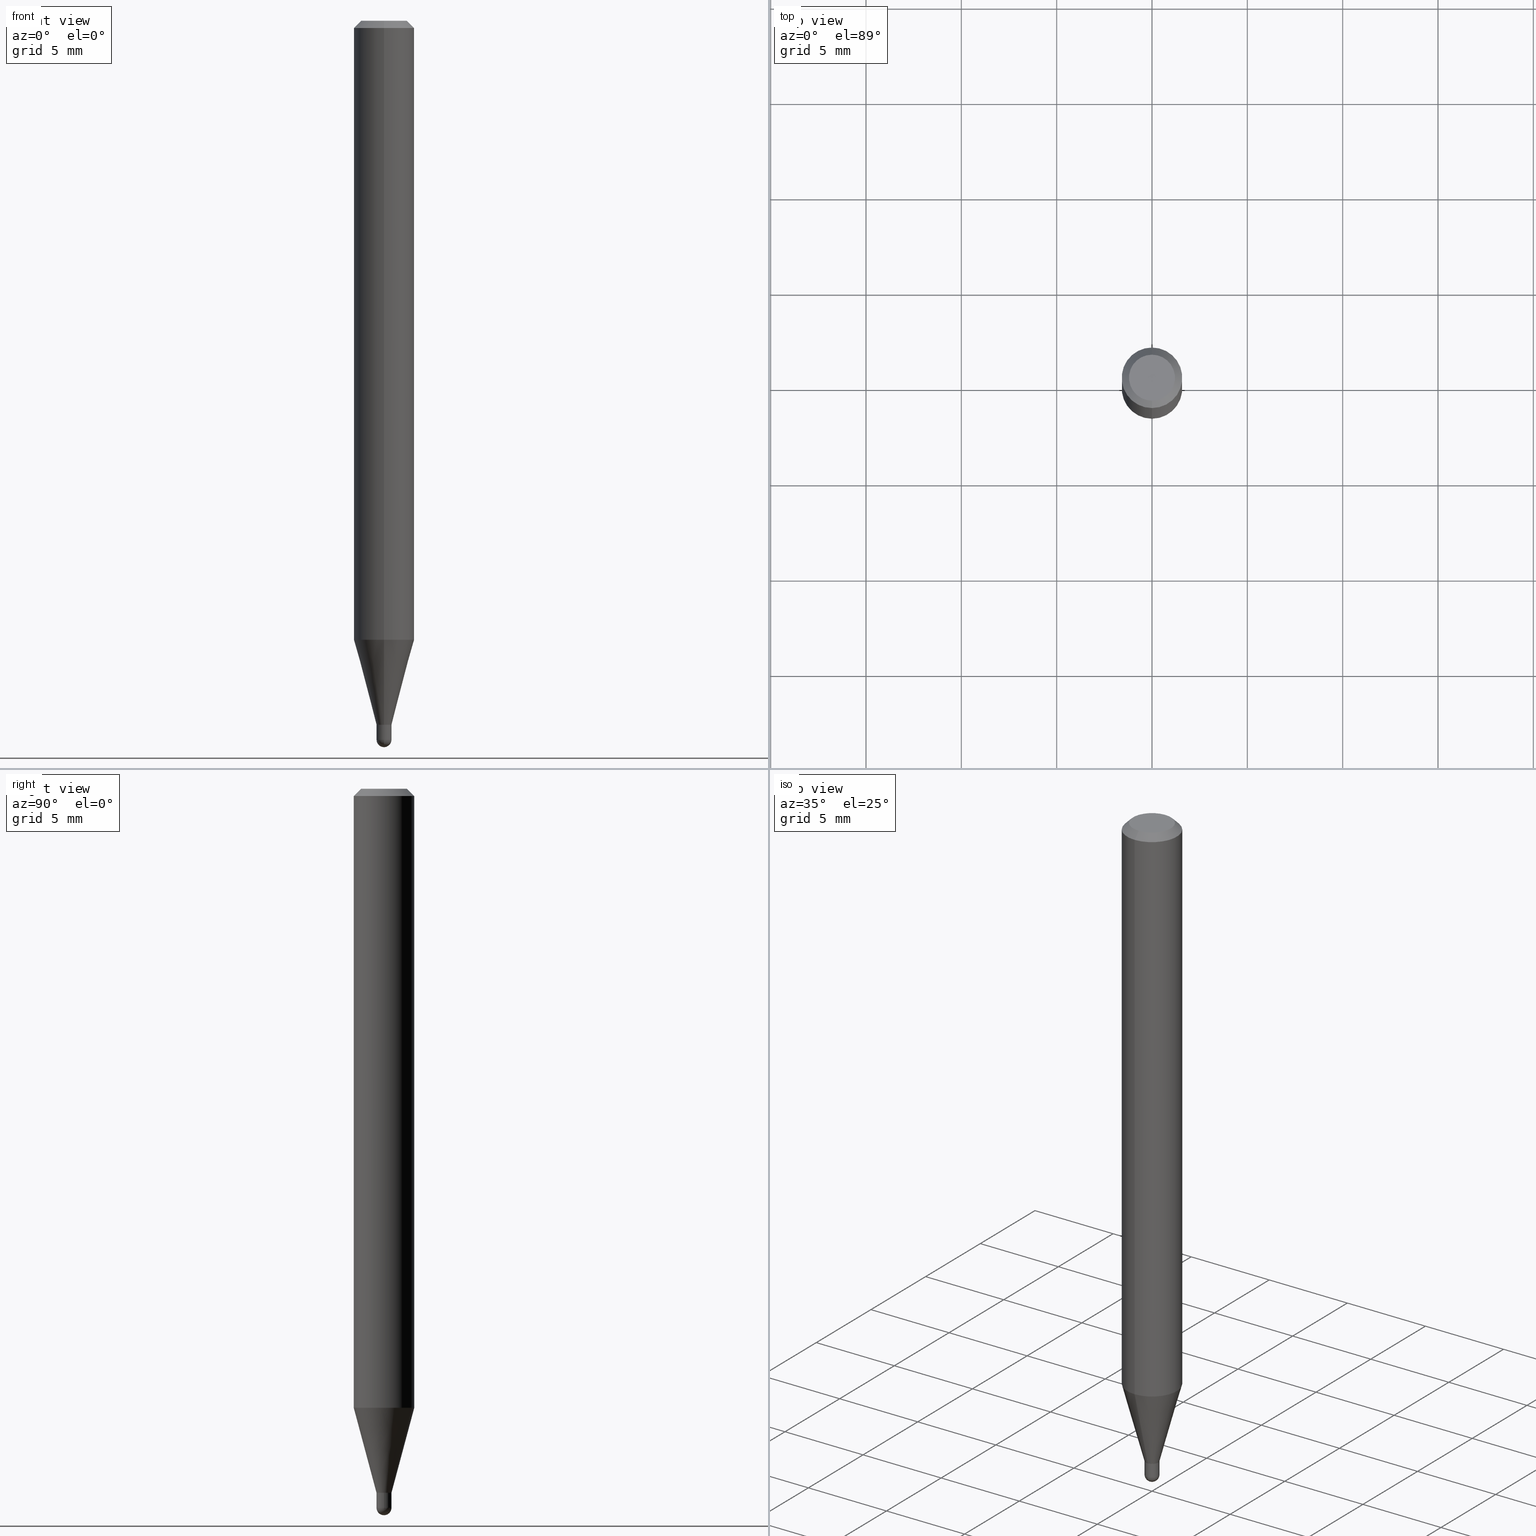
[diagram: canonical four-view strip — front | top / right | iso, engineering-drawing reading convention]
A machine part, canonical four-view strip (front | top / right | iso — engineering-drawing reading convention). The complete STEP part file that produces these views, byte-faithful:
ISO-10303-21;
HEADER;
FILE_DESCRIPTION (( 'STEP AP203' ),
    '1' );
FILE_NAME ('04343.STEP',
    '2024-03-08T18:45:11',
    ( '' ),
    ( '' ),
    'SwSTEP 2.0',
    'SolidWorks 2023',
    '' );
FILE_SCHEMA (( 'CONFIG_CONTROL_DESIGN' ));
ENDSEC;

DATA;
#1 = ADVANCED_FACE ( 'NONE', ( #459 ), #104, .T. ) ;
#2 = DIRECTION ( 'NONE',  ( -2.445464718672532152E-29, 3.491487192393841779E-15, 1.000000000000000000 ) ) ;
#3 = EDGE_LOOP ( 'NONE', ( #447, #122, #183, #148 ) ) ;
#4 = CARTESIAN_POINT ( 'NONE',  ( -1.047444401652584501E-16, -0.01500000000000507525, -1.453500000000000458 ) ) ;
#5 = DIRECTION ( 'NONE',  ( -2.445464718672532152E-29, 3.491487192393841779E-15, 1.000000000000000000 ) ) ;
#6 = AXIS2_PLACEMENT_3D ( 'NONE', #51, #366, #8 ) ;
#7 = EDGE_LOOP ( 'NONE', ( #402, #224, #219, #286 ) ) ;
#8 = DIRECTION ( 'NONE',  ( -6.982962677686265922E-15, -1.000000000000000000, 0.000000000000000000 ) ) ;
#9 = FACE_OUTER_BOUND ( 'NONE', #496, .T. ) ;
#10 = DIRECTION ( 'NONE',  ( -2.445468806185136597E-29, 3.491481338843145583E-15, 1.000000000000000000 ) ) ;
#11 = ORIENTED_EDGE ( 'NONE', *, *, #481, .T. ) ;
#12 = FACE_OUTER_BOUND ( 'NONE', #19, .T. ) ;
#13 = CALENDAR_DATE ( 2024, 8, 3 ) ;
#14 = CARTESIAN_POINT ( 'NONE',  ( 3.553260236231190084E-29, -5.073130890548253102E-15, -1.453000000000000291 ) ) ;
#15 = EDGE_LOOP ( 'NONE', ( #405, #86, #223, #133 ) ) ;
#16 = DIRECTION ( 'NONE',  ( -2.445464718672532152E-29, 3.491487192393841779E-15, 1.000000000000000000 ) ) ;
#17 = ADVANCED_FACE ( 'NONE', ( #189 ), #29, .F. ) ;
#18 = PERSON ( 'UNSPECIFIED', 'UNSPECIFIED', 'UNSPECIFIED', ('UNSPECIFIED'), ('UNSPECIFIED'), ('UNSPECIFIED') ) ;
#19 = EDGE_LOOP ( 'NONE', ( #137, #244 ) ) ;
#20 = AXIS2_PLACEMENT_3D ( 'NONE', #238, #298, #141 ) ;
#21 = ORIENTED_EDGE ( 'NONE', *, *, #72, .T. ) ;
#22 = CYLINDRICAL_SURFACE ( 'NONE', #494, 0.01549999999999992530 ) ;
#23 = COORDINATED_UNIVERSAL_TIME_OFFSET ( 5, 0, .BEHIND. ) ;
#24 = ORIENTED_EDGE ( 'NONE', *, *, #348, .T. ) ;
#25 = ORIENTED_EDGE ( 'NONE', *, *, #203, .F. ) ;
#26 = CARTESIAN_POINT ( 'NONE',  ( 3.628972935033607816E-29, -5.185002250051328055E-15, -1.484500000000000153 ) ) ;
#27 = CARTESIAN_POINT ( 'NONE',  ( 1.101341240428524689E-16, 0.01549999999999512185, -1.453500000000000236 ) ) ;
#28 = AXIS2_PLACEMENT_3D ( 'NONE', #128, #474, #361 ) ;
#29 = PLANE ( 'NONE',  #119 ) ;
#30 = EDGE_CURVE ( 'NONE', #436, #446, #424, .T. ) ;
#31 = CONICAL_SURFACE ( 'NONE', #74, 0.01550000000000019765, 0.2617993877991570684 ) ;
#32 = EDGE_CURVE ( 'NONE', #436, #293, #453, .T. ) ;
#33 = AXIS2_PLACEMENT_3D ( 'NONE', #418, #151, #355 ) ;
#34 = CARTESIAN_POINT ( 'NONE',  ( 3.630298442781836457E-29, -5.183104047512650777E-15, -1.484500000000000597 ) ) ;
#35 = DIRECTION ( 'NONE',  ( 0.000000000000000000, 0.000000000000000000, 1.000000000000000000 ) ) ;
#36 = CARTESIAN_POINT ( 'NONE',  ( -0.01549999999999999989, -5.018851962717766568E-15, -1.453500000000000236 ) ) ;
#37 = CARTESIAN_POINT ( 'NONE',  ( 0.000000000000000000, 0.000000000000000000, 0.000000000000000000 ) ) ;
#38 =( NAMED_UNIT ( * ) SI_UNIT ( $, .STERADIAN. ) SOLID_ANGLE_UNIT ( ) );
#39 = CIRCLE ( 'NONE', #327, 0.01549999999999999989 ) ;
#40 = FACE_OUTER_BOUND ( 'NONE', #150, .T. ) ;
#41 = ORIENTED_EDGE ( 'NONE', *, *, #215, .T. ) ;
#42 = DIRECTION ( 'NONE',  ( -6.982962677686265922E-15, -1.000000000000000000, 0.000000000000000000 ) ) ;
#43 = ORIENTED_EDGE ( 'NONE', *, *, #96, .T. ) ;
#44 = DIRECTION ( 'NONE',  ( -2.445464718672532152E-29, 3.491487192393841779E-15, 1.000000000000000000 ) ) ;
#45 = LENGTH_MEASURE_WITH_UNIT ( LENGTH_MEASURE( 0.02539999999999999897 ), #325 );
#46 = CC_DESIGN_PERSON_AND_ORGANIZATION_ASSIGNMENT ( #190, #442, ( #147 ) ) ;
#47 = CARTESIAN_POINT ( 'NONE',  ( 3.668197078008814466E-31, -5.237230788590785669E-17, -0.01500000000000006710 ) ) ;
#48 = CLOSED_SHELL ( 'NONE', ( #230, #71, #399, #448, #272, #199, #140, #111, #389, #281, #157, #386 ) ) ;
#49 = ORIENTED_EDGE ( 'NONE', *, *, #123, .F. ) ;
#50 = CC_DESIGN_APPROVAL ( #146, ( #147 ) ) ;
#51 = CARTESIAN_POINT ( 'NONE',  ( 3.628972935033607816E-29, -5.185002250051328055E-15, -1.484500000000000153 ) ) ;
#52 = DIRECTION ( 'NONE',  ( 1.000000000000000000, -6.982962677686238312E-15, 0.000000000000000000 ) ) ;
#53 = ORIENTED_EDGE ( 'NONE', *, *, #30, .T. ) ;
#54 = EDGE_CURVE ( 'NONE', #282, #144, #470, .T. ) ;
#55 = ORIENTED_EDGE ( 'NONE', *, *, #308, .T. ) ;
#56 = CARTESIAN_POINT ( 'NONE',  ( 3.554482968590526630E-29, -5.074876634144451115E-15, -1.453500000000000458 ) ) ;
#57 = DIRECTION ( 'NONE',  ( -2.445464718672532152E-29, 3.491487192393841779E-15, 1.000000000000000000 ) ) ;
#58 = EDGE_LOOP ( 'NONE', ( #49, #125, #416, #62 ) ) ;
#59 = AXIS2_PLACEMENT_3D ( 'NONE', #138, #97, #413 ) ;
#60 = VECTOR ( 'NONE', #383, 39.37007874015748143 ) ;
#61 = CARTESIAN_POINT ( 'NONE',  ( 3.630298442781836457E-29, -5.183104047512650777E-15, -1.484500000000000597 ) ) ;
#62 = ORIENTED_EDGE ( 'NONE', *, *, #296, .F. ) ;
#63 = DATE_AND_TIME ( #456, #208 ) ;
#64 = VERTEX_POINT ( 'NONE', #273 ) ;
#65 = DIRECTION ( 'NONE',  ( 1.000000000000000000, -6.982962677686266711E-15, 4.876176775795935232E-29 ) ) ;
#66 = SPHERICAL_SURFACE ( 'NONE', #81, 0.01549999999999993917 ) ;
#67 = CARTESIAN_POINT ( 'NONE',  ( -3.773273898774340269E-16, -0.04749999999999999362, 1.003456856299693000E-16 ) ) ;
#68 = AXIS2_PLACEMENT_3D ( 'NONE', #47, #278, #392 ) ;
#69 = LOCAL_TIME ( 13, 45, 11.00000000000000000, #221 ) ;
#70 = CARTESIAN_POINT ( 'NONE',  ( -0.01549999999999999989, 1.101341240428155280E-16, -7.624349389895103058E-31 ) ) ;
#71 = ADVANCED_FACE ( 'NONE', ( #40 ), #510, .T. ) ;
#72 = EDGE_CURVE ( 'NONE', #254, #341, #275, .T. ) ;
#73 = DIRECTION ( 'NONE',  ( -2.445464718672532152E-29, 3.491487192393841779E-15, 1.000000000000000000 ) ) ;
#74 = AXIS2_PLACEMENT_3D ( 'NONE', #225, #351, #100 ) ;
#75 = CARTESIAN_POINT ( 'NONE',  ( -4.287811248607203282E-16, -0.06250000000000005551, -0.01499999999999984852 ) ) ;
#76 = APPLICATION_CONTEXT ( 'configuration controlled 3d designs of mechanical parts and assemblies' ) ;
#77 = EDGE_CURVE ( 'NONE', #446, #335, #39, .T. ) ;
#78 = CARTESIAN_POINT ( 'NONE',  ( 3.628972935033607816E-29, -5.185002250051328055E-15, -1.484500000000000153 ) ) ;
#79 = DIRECTION ( 'NONE',  ( 2.445464718672532152E-29, -3.491487192393841779E-15, -1.000000000000000000 ) ) ;
#80 = CIRCLE ( 'NONE', #152, 0.06250000000000000000 ) ;
#81 = AXIS2_PLACEMENT_3D ( 'NONE', #160, #234, #156 ) ;
#82 = DIRECTION ( 'NONE',  ( -6.982962677686265922E-15, -1.000000000000000000, 0.000000000000000000 ) ) ;
#83 = ORIENTED_EDGE ( 'NONE', *, *, #481, .F. ) ;
#84 = PLANE ( 'NONE',  #28 ) ;
#85 = DIRECTION ( 'NONE',  ( -2.445464718672532152E-29, 3.491487192393841779E-15, 1.000000000000000000 ) ) ;
#86 = ORIENTED_EDGE ( 'NONE', *, *, #54, .T. ) ;
#87 = APPROVAL ( #210, 'UNSPECIFIED' ) ;
#88 = CYLINDRICAL_SURFACE ( 'NONE', #166, 0.01549999999999992530 ) ;
#89 = VERTEX_POINT ( 'NONE', #398 ) ;
#90 = DIRECTION ( 'NONE',  ( -4.937700262161976356E-15, -0.7071067811861768693, 0.7071067811869181652 ) ) ;
#91 = CIRCLE ( 'NONE', #33, 0.01549999999999999989 ) ;
#92 = ORIENTED_EDGE ( 'NONE', *, *, #264, .T. ) ;
#93 = CARTESIAN_POINT ( 'NONE',  ( 1.601778314939720223E-45, -2.286922575068692534E-31, -6.549995600873813326E-17 ) ) ;
#94 = DATE_AND_TIME ( #13, #444 ) ;
#95 = VERTEX_POINT ( 'NONE', #404 ) ;
#96 = EDGE_CURVE ( 'NONE', #89, #335, #285, .T. ) ;
#97 = DIRECTION ( 'NONE',  ( -2.445464718672532152E-29, 3.491487192393841779E-15, 1.000000000000000000 ) ) ;
#98 = ORIENTED_EDGE ( 'NONE', *, *, #215, .F. ) ;
#99 = VECTOR ( 'NONE', #466, 39.37007874015748143 ) ;
#100 = DIRECTION ( 'NONE',  ( -6.982962677686266711E-15, -1.000000000000000000, 0.000000000000000000 ) ) ;
#101 = CIRCLE ( 'NONE', #339, 0.01499999999999999944 ) ;
#102 = PERSON_AND_ORGANIZATION ( #18, #320 ) ;
#103 = FACE_OUTER_BOUND ( 'NONE', #7, .T. ) ;
#104 = CYLINDRICAL_SURFACE ( 'NONE', #290, 0.01549999999999999989 ) ;
#105 = PERSON_AND_ORGANIZATION_ROLE ( 'design_supplier' ) ;
#106 = ORIENTED_EDGE ( 'NONE', *, *, #428, .F. ) ;
#107 = CONICAL_SURFACE ( 'NONE', #393, 0.01499999999999999944, 0.7853981633969275844 ) ;
#108 = DIRECTION ( 'NONE',  ( 1.000000000000000000, -6.982962677686265922E-15, 4.883557194083112340E-29 ) ) ;
#109 = APPLICATION_PROTOCOL_DEFINITION ( 'international standard', 'config_control_design', 1994, #174 ) ;
#110 = DIRECTION ( 'NONE',  ( 1.000000000000000000, -7.105427357601001070E-15, 4.926315508542082329E-29 ) ) ;
#111 = ADVANCED_FACE ( 'NONE', ( #246 ), #158, .T. ) ;
#112 = AXIS2_PLACEMENT_3D ( 'NONE', #257, #212, #288 ) ;
#113 = VECTOR ( 'NONE', #90, 39.37007874015748143 ) ;
#114 = EDGE_CURVE ( 'NONE', #164, #379, #207, .T. ) ;
#115 = SECURITY_CLASSIFICATION_LEVEL ( 'unclassified' ) ;
#116 = CARTESIAN_POINT ( 'NONE',  ( -1.047444401652584501E-16, -0.01500000000000507525, -1.453500000000000458 ) ) ;
#117 = ORIENTED_EDGE ( 'NONE', *, *, #32, .T. ) ;
#118 = EDGE_CURVE ( 'NONE', #295, #167, #353, .T. ) ;
#119 = AXIS2_PLACEMENT_3D ( 'NONE', #344, #304, #460 ) ;
#120 = DIRECTION ( 'NONE',  ( -6.982962677686265922E-15, -1.000000000000000000, 3.491487192393841779E-15 ) ) ;
#121 = CIRCLE ( 'NONE', #454, 0.04749999999999999362 ) ;
#122 = ORIENTED_EDGE ( 'NONE', *, *, #493, .F. ) ;
#123 = EDGE_CURVE ( 'NONE', #64, #293, #132, .T. ) ;
#124 = CARTESIAN_POINT ( 'NONE',  ( 0.000000000000000000, 0.000000000000000000, 0.000000000000000000 ) ) ;
#125 = ORIENTED_EDGE ( 'NONE', *, *, #428, .T. ) ;
#126 = DIRECTION ( 'NONE',  ( -6.982962677686265922E-15, -1.000000000000000000, 3.491487192393841779E-15 ) ) ;
#127 = DIRECTION ( 'NONE',  ( 1.000000000000000000, -6.982962677686238312E-15, 0.000000000000000000 ) ) ;
#128 = CARTESIAN_POINT ( 'NONE',  ( 3.316907271900976096E-16, 0.04749999999999999362, -1.985956196430765430E-16 ) ) ;
#129 = CARTESIAN_POINT ( 'NONE',  ( 3.554488909790096218E-29, -5.074868126008512823E-15, -1.453500000000000236 ) ) ;
#130 = CARTESIAN_POINT ( 'NONE',  ( 1.065814103640505597E-16, 0.01499999999999492538, -1.453500000000000458 ) ) ;
#131 = FACE_OUTER_BOUND ( 'NONE', #321, .T. ) ;
#132 = CIRCLE ( 'NONE', #6, 0.01549999999999993917 ) ;
#133 = ORIENTED_EDGE ( 'NONE', *, *, #348, .F. ) ;
#134 = CC_DESIGN_APPROVAL ( #305, ( #495 ) ) ;
#135 = CARTESIAN_POINT ( 'NONE',  ( 3.125532835414998738E-29, -4.462447477132949161E-15, -1.278093612044269189 ) ) ;
#136 = CARTESIAN_POINT ( 'NONE',  ( 3.668197078008814466E-31, -5.237230788590785669E-17, -0.01500000000000006710 ) ) ;
#137 = ORIENTED_EDGE ( 'NONE', *, *, #493, .T. ) ;
#138 = CARTESIAN_POINT ( 'NONE',  ( 1.601778314939720223E-45, -2.286922575068692534E-31, -6.549995600873813326E-17 ) ) ;
#139 = ORIENTED_EDGE ( 'NONE', *, *, #178, .F. ) ;
#140 = ADVANCED_FACE ( 'NONE', ( #443 ), #169, .T. ) ;
#141 = DIRECTION ( 'NONE',  ( -6.982962677686266711E-15, -1.000000000000000000, 0.000000000000000000 ) ) ;
#142 = COORDINATED_UNIVERSAL_TIME_OFFSET ( 5, 0, .BEHIND. ) ;
#143 = DATE_AND_TIME ( #377, #69 ) ;
#144 = VERTEX_POINT ( 'NONE', #171 ) ;
#145 = AXIS2_PLACEMENT_3D ( 'NONE', #177, #302, #375 ) ;
#146 = APPROVAL ( #417, 'UNSPECIFIED' ) ;
#147 = PRODUCT_DEFINITION_FORMATION_WITH_SPECIFIED_SOURCE ( 'ANY', '', #501, .NOT_KNOWN. ) ;
#148 = ORIENTED_EDGE ( 'NONE', *, *, #258, .T. ) ;
#149 = CC_DESIGN_DATE_AND_TIME_ASSIGNMENT ( #143, #253, ( #495 ) ) ;
#150 = EDGE_LOOP ( 'NONE', ( #256, #179, #318, #83 ) ) ;
#151 = DIRECTION ( 'NONE',  ( -2.445468806185136597E-29, 3.491481338843145583E-15, 1.000000000000000000 ) ) ;
#152 = AXIS2_PLACEMENT_3D ( 'NONE', #420, #382, #289 ) ;
#153 = EDGE_CURVE ( 'NONE', #334, #282, #299, .T. ) ;
#154 = APPROVAL_STATUS ( 'not_yet_approved' ) ;
#155 = CARTESIAN_POINT ( 'NONE',  ( 0.01549999999999999989, -5.183104047512649200E-15, -1.453500000000000236 ) ) ;
#156 = DIRECTION ( 'NONE',  ( -6.982962677686265922E-15, -1.000000000000000000, 0.000000000000000000 ) ) ;
#157 = ADVANCED_FACE ( 'NONE', ( #277 ), #107, .T. ) ;
#158 = CONICAL_SURFACE ( 'NONE', #68, 0.06250000000000000000, 0.7853981633974483900 ) ;
#159 = CIRCLE ( 'NONE', #437, 0.01549999999999993917 ) ;
#160 = CARTESIAN_POINT ( 'NONE',  ( 3.628972935033607816E-29, -5.185002250051328055E-15, -1.484500000000000153 ) ) ;
#161 = APPROVAL_ROLE ( '' ) ;
#162 = EDGE_CURVE ( 'NONE', #498, #475, #280, .T. ) ;
#163 = ORIENTED_EDGE ( 'NONE', *, *, #162, .T. ) ;
#164 = VERTEX_POINT ( 'NONE', #4 ) ;
#165 = CLOSED_SHELL ( 'NONE', ( #1, #451, #17, #469, #505 ) ) ;
#166 = AXIS2_PLACEMENT_3D ( 'NONE', #214, #2, #120 ) ;
#167 = VERTEX_POINT ( 'NONE', #397 ) ;
#168 = COORDINATED_UNIVERSAL_TIME_OFFSET ( 5, 0, .BEHIND. ) ;
#169 = CYLINDRICAL_SURFACE ( 'NONE', #112, 0.06250000000000000000 ) ;
#170 = CARTESIAN_POINT ( 'NONE',  ( 4.440892098500935790E-16, 0.06249999999999551747, -1.278093612044269411 ) ) ;
#171 = CARTESIAN_POINT ( 'NONE',  ( 4.440892098500940720E-16, 0.06249999999999995143, -0.01500000000000028394 ) ) ;
#172 = DIRECTION ( 'NONE',  ( -6.982962677686265922E-15, -1.000000000000000000, 4.370956789862821150E-15 ) ) ;
#173 = VECTOR ( 'NONE', #360, 39.37007874015748143 ) ;
#174 = APPLICATION_CONTEXT ( 'configuration controlled 3d designs of mechanical parts and assemblies' ) ;
#175 = CIRCLE ( 'NONE', #262, 0.01549999999999965121 ) ;
#176 = ORIENTED_EDGE ( 'NONE', *, *, #118, .F. ) ;
#177 = CARTESIAN_POINT ( 'NONE',  ( 3.554488909790096218E-29, -5.074868126008512823E-15, -1.453500000000000236 ) ) ;
#178 = EDGE_CURVE ( 'NONE', #374, #144, #432, .T. ) ;
#179 = ORIENTED_EDGE ( 'NONE', *, *, #390, .T. ) ;
#180 = EDGE_CURVE ( 'NONE', #167, #334, #431, .T. ) ;
#181 = CARTESIAN_POINT ( 'NONE',  ( 0.000000000000000000, 0.000000000000000000, 0.000000000000000000 ) ) ;
#182 = CARTESIAN_POINT ( 'NONE',  ( -4.364351673553916201E-16, -0.06250000000000000000, 2.182179495246151112E-16 ) ) ;
#183 = ORIENTED_EDGE ( 'NONE', *, *, #178, .T. ) ;
#184 = PRODUCT_DEFINITION_SHAPE ( 'NONE', 'NONE',  #271 ) ;
#185 = DIRECTION ( 'NONE',  ( -2.445464718672532152E-29, 3.491487192393841779E-15, 1.000000000000000000 ) ) ;
#186 = ORIENTED_EDGE ( 'NONE', *, *, #180, .T. ) ;
#187 = AXIS2_PLACEMENT_3D ( 'NONE', #37, #73, #274 ) ;
#188 = DIRECTION ( 'NONE',  ( -6.982962677686265922E-15, -1.000000000000000000, 3.491487192393841779E-15 ) ) ;
#189 = FACE_OUTER_BOUND ( 'NONE', #209, .T. ) ;
#190 = PERSON_AND_ORGANIZATION ( #18, #320 ) ;
#191 = CIRCLE ( 'NONE', #476, 0.01549999999999999989 ) ;
#192 = CALENDAR_DATE ( 2024, 8, 3 ) ;
#193 = CARTESIAN_POINT ( 'NONE',  ( -1.082359215041365986E-16, -0.01549999999999992530, 5.411805148210428666E-17 ) ) ;
#194 = DIRECTION ( 'NONE',  ( -2.445468806185136597E-29, 3.491481338843145583E-15, 1.000000000000000000 ) ) ;
#195 = CARTESIAN_POINT ( 'NONE',  ( -0.01549999999999999989, -5.018851962717766568E-15, -1.484500000000000597 ) ) ;
#196 = CARTESIAN_POINT ( 'NONE',  ( 3.553260236231190084E-29, -5.073130890548253102E-15, -1.453000000000000291 ) ) ;
#197 = DIRECTION ( 'NONE',  ( -1.807323732225375893E-15, -0.2588190451025247363, 0.9659258262890673130 ) ) ;
#198 = DIRECTION ( 'NONE',  ( -6.982962677686265922E-15, -1.000000000000000000, 0.000000000000000000 ) ) ;
#199 = ADVANCED_FACE ( 'NONE', ( #410 ), #239, .T. ) ;
#200 = AXIS2_PLACEMENT_3D ( 'NONE', #56, #441, #403 ) ;
#201 = CARTESIAN_POINT ( 'NONE',  ( 4.364351673553919652E-16, 0.06249999999999995143, -0.01500000000000028394 ) ) ;
#202 = DIRECTION ( 'NONE',  ( -2.445464718672532152E-29, 3.491487192393841779E-15, 1.000000000000000000 ) ) ;
#203 = EDGE_CURVE ( 'NONE', #498, #374, #306, .T. ) ;
#204 = ORIENTED_EDGE ( 'NONE', *, *, #118, .T. ) ;
#205 = PERSON_AND_ORGANIZATION ( #18, #320 ) ;
#206 = DIRECTION ( 'NONE',  ( -6.982962677686266711E-15, -1.000000000000000000, 0.000000000000000000 ) ) ;
#207 = CIRCLE ( 'NONE', #200, 0.01499999999999999944 ) ;
#208 = LOCAL_TIME ( 13, 45, 11.00000000000000000, #23 ) ;
#209 = EDGE_LOOP ( 'NONE', ( #41, #480 ) ) ;
#210 = APPROVAL_STATUS ( 'not_yet_approved' ) ;
#211 = ORIENTED_EDGE ( 'NONE', *, *, #54, .F. ) ;
#212 = DIRECTION ( 'NONE',  ( -2.445464718672532152E-29, 3.491487192393841779E-15, 1.000000000000000000 ) ) ;
#213 = PLANE ( 'NONE',  #283 ) ;
#214 = CARTESIAN_POINT ( 'NONE',  ( 0.000000000000000000, 0.000000000000000000, 0.000000000000000000 ) ) ;
#215 = EDGE_CURVE ( 'NONE', #335, #446, #250, .T. ) ;
#216 = APPROVAL_DATE_TIME ( #94, #87 ) ;
#217 = CIRCLE ( 'NONE', #503, 0.06250000000000000000 ) ;
#218 = AXIS2_PLACEMENT_3D ( 'NONE', #508, #35, #473 ) ;
#219 = ORIENTED_EDGE ( 'NONE', *, *, #371, .T. ) ;
#220 = DIRECTION ( 'NONE',  ( -6.982962677686265922E-15, -1.000000000000000000, 3.483106191921935554E-15 ) ) ;
#221 = COORDINATED_UNIVERSAL_TIME_OFFSET ( 5, 0, .BEHIND. ) ;
#222 = ORIENTED_EDGE ( 'NONE', *, *, #371, .F. ) ;
#223 = ORIENTED_EDGE ( 'NONE', *, *, #358, .F. ) ;
#224 = ORIENTED_EDGE ( 'NONE', *, *, #308, .F. ) ;
#225 = CARTESIAN_POINT ( 'NONE',  ( 3.554482968590526070E-29, -5.074876634144450327E-15, -1.453500000000000236 ) ) ;
#226 = VECTOR ( 'NONE', #291, 39.37007874015748143 ) ;
#227 = ADVANCED_BREP_SHAPE_REPRESENTATION ( '04343', ( #340, #343, #218 ), #284 ) ;
#228 = CALENDAR_DATE ( 2024, 8, 3 ) ;
#229 = ORIENTED_EDGE ( 'NONE', *, *, #336, .T. ) ;
#230 = ADVANCED_FACE ( 'NONE', ( #486 ), #22, .F. ) ;
#231 = AXIS2_PLACEMENT_3D ( 'NONE', #34, #194, #387 ) ;
#232 = APPROVAL_PERSON_ORGANIZATION ( #261, #146, #449 ) ;
#233 = CC_DESIGN_DATE_AND_TIME_ASSIGNMENT ( #388, #345, ( #271 ) ) ;
#234 = DIRECTION ( 'NONE',  ( 1.000000000000000000, -6.982962677686265922E-15, 4.883557194083112340E-29 ) ) ;
#235 = APPLICATION_PROTOCOL_DEFINITION ( 'international standard', 'config_control_design', 1994, #76 ) ;
#236 = CARTESIAN_POINT ( 'NONE',  ( -1.082359215041029611E-16, -0.01550000000000527345, -1.453500000000000236 ) ) ;
#237 = LINE ( 'NONE', #116, #113 ) ;
#238 = CARTESIAN_POINT ( 'NONE',  ( 3.554482968590526070E-29, -5.074876634144450327E-15, -1.453500000000000236 ) ) ;
#239 = CONICAL_SURFACE ( 'NONE', #20, 0.01550000000000019765, 0.2617993877991570684 ) ;
#240 = VECTOR ( 'NONE', #342, 39.37007874015748854 ) ;
#241 = DIRECTION ( 'NONE',  ( -2.445468806185136597E-29, 3.491481338843145583E-15, 1.000000000000000000 ) ) ;
#242 = ORIENTED_EDGE ( 'NONE', *, *, #258, .F. ) ;
#243 =( CONVERSION_BASED_UNIT ( 'INCH', #45 ) LENGTH_UNIT ( ) NAMED_UNIT ( #315 ) );
#244 = ORIENTED_EDGE ( 'NONE', *, *, #203, .T. ) ;
#245 = DIRECTION ( 'NONE',  ( 1.000000000000000000, -6.982962677686266711E-15, 4.876176775795935232E-29 ) ) ;
#246 = FACE_OUTER_BOUND ( 'NONE', #3, .T. ) ;
#247 = ORIENTED_EDGE ( 'NONE', *, *, #96, .F. ) ;
#248 = DIRECTION ( 'NONE',  ( -2.445468806185136597E-29, 3.491481338843145583E-15, 1.000000000000000000 ) ) ;
#249 = PERSON_AND_ORGANIZATION ( #18, #320 ) ;
#250 = CIRCLE ( 'NONE', #145, 0.01549999999999999989 ) ;
#251 = VECTOR ( 'NONE', #185, 39.37007874015748143 ) ;
#252 = DIRECTION ( 'NONE',  ( -6.982962677686265922E-15, -1.000000000000000000, 0.000000000000000000 ) ) ;
#253 = DATE_TIME_ROLE ( 'classification_date' ) ;
#254 = VERTEX_POINT ( 'NONE', #266 ) ;
#255 = CARTESIAN_POINT ( 'NONE',  ( -1.082359215040995221E-16, -0.01550000000000477732, -1.453000000000000291 ) ) ;
#256 = ORIENTED_EDGE ( 'NONE', *, *, #114, .T. ) ;
#257 = CARTESIAN_POINT ( 'NONE',  ( 0.000000000000000000, 0.000000000000000000, 0.000000000000000000 ) ) ;
#258 = EDGE_CURVE ( 'NONE', #144, #475, #80, .T. ) ;
#259 = ORIENTED_EDGE ( 'NONE', *, *, #488, .F. ) ;
#260 = CARTESIAN_POINT ( 'NONE',  ( 2.771116669464732889E-16, 0.01549999999999512185, -1.453500000000000236 ) ) ;
#261 = PERSON_AND_ORGANIZATION ( #18, #320 ) ;
#262 = AXIS2_PLACEMENT_3D ( 'NONE', #196, #427, #310 ) ;
#263 = EDGE_LOOP ( 'NONE', ( #176, #477, #21, #222 ) ) ;
#264 = EDGE_CURVE ( 'NONE', #282, #334, #217, .T. ) ;
#265 = ORIENTED_EDGE ( 'NONE', *, *, #72, .F. ) ;
#266 = CARTESIAN_POINT ( 'NONE',  ( 1.101341240428482041E-16, 0.01549999999999452510, -1.453000000000000291 ) ) ;
#267 = CARTESIAN_POINT ( 'NONE',  ( 0.000000000000000000, 0.000000000000000000, 0.000000000000000000 ) ) ;
#268 = AXIS2_PLACEMENT_3D ( 'NONE', #401, #5, #252 ) ;
#269 = ORIENTED_EDGE ( 'NONE', *, *, #153, .F. ) ;
#270 = DIRECTION ( 'NONE',  ( 7.105427357601001070E-15, 1.000000000000000000, 0.000000000000000000 ) ) ;
#271 = PRODUCT_DEFINITION ( 'UNKNOWN', '', #147, #463 ) ;
#272 = ADVANCED_FACE ( 'NONE', ( #337 ), #31, .T. ) ;
#273 = CARTESIAN_POINT ( 'NONE',  ( 3.666214947655363055E-29, -5.240069312072735277E-15, -1.500000000000000222 ) ) ;
#274 = DIRECTION ( 'NONE',  ( -6.982962677686265922E-15, -1.000000000000000000, 3.491487192393841779E-15 ) ) ;
#275 = CIRCLE ( 'NONE', #312, 0.01549999999999965121 ) ;
#276 = AXIS2_PLACEMENT_3D ( 'NONE', #136, #372, #220 ) ;
#277 = FACE_OUTER_BOUND ( 'NONE', #440, .T. ) ;
#278 = DIRECTION ( 'NONE',  ( 2.445464718672532152E-29, -3.491487192393841779E-15, -1.000000000000000000 ) ) ;
#279 = PERSON_AND_ORGANIZATION ( #18, #320 ) ;
#280 = LINE ( 'NONE', #75, #173 ) ;
#281 = ADVANCED_FACE ( 'NONE', ( #9 ), #213, .F. ) ;
#282 = VERTEX_POINT ( 'NONE', #170 ) ;
#283 = AXIS2_PLACEMENT_3D ( 'NONE', #332, #294, #126 ) ;
#284 =( GEOMETRIC_REPRESENTATION_CONTEXT ( 3 ) GLOBAL_UNCERTAINTY_ASSIGNED_CONTEXT ( ( #425 ) ) GLOBAL_UNIT_ASSIGNED_CONTEXT ( ( #243, #322, #38 ) ) REPRESENTATION_CONTEXT ( 'NONE', 'WORKASPACE' ) );
#285 = LINE ( 'NONE', #363, #338 ) ;
#286 = ORIENTED_EDGE ( 'NONE', *, *, #434, .T. ) ;
#287 = CARTESIAN_POINT ( 'NONE',  ( 3.554482968590526070E-29, -5.074876634144450327E-15, -1.453500000000000236 ) ) ;
#288 = DIRECTION ( 'NONE',  ( -6.982962677686265922E-15, -1.000000000000000000, 3.491487192393841779E-15 ) ) ;
#289 = DIRECTION ( 'NONE',  ( -6.982962677686265922E-15, -1.000000000000000000, 3.483106191921935554E-15 ) ) ;
#290 = AXIS2_PLACEMENT_3D ( 'NONE', #267, #422, #65 ) ;
#291 = DIRECTION ( 'NONE',  ( 5.024295867785445738E-15, 0.7071067811861817543, 0.7071067811869132802 ) ) ;
#292 = PERSON_AND_ORGANIZATION_ROLE ( 'classification_officer' ) ;
#293 = VERTEX_POINT ( 'NONE', #323 ) ;
#294 = DIRECTION ( 'NONE',  ( -2.445464718672531872E-29, 3.491487192393841779E-15, 1.000000000000000000 ) ) ;
#295 = VERTEX_POINT ( 'NONE', #260 ) ;
#296 = EDGE_CURVE ( 'NONE', #293, #89, #429, .T. ) ;
#297 = EDGE_CURVE ( 'NONE', #89, #95, #191, .T. ) ;
#298 = DIRECTION ( 'NONE',  ( -2.445464718672532152E-29, 3.491487192393841779E-15, 1.000000000000000000 ) ) ;
#299 = CIRCLE ( 'NONE', #485, 0.06250000000000000000 ) ;
#300 = AXIS2_PLACEMENT_3D ( 'NONE', #124, #10, #245 ) ;
#301 = ORIENTED_EDGE ( 'NONE', *, *, #123, .T. ) ;
#302 = DIRECTION ( 'NONE',  ( -2.445468806185136597E-29, 3.491481338843145583E-15, 1.000000000000000000 ) ) ;
#303 = EDGE_LOOP ( 'NONE', ( #211, #92, #24, #242 ) ) ;
#304 = DIRECTION ( 'NONE',  ( 2.438088387897960049E-29, -3.491481338843145188E-15, -1.000000000000000000 ) ) ;
#305 = APPROVAL ( #154, 'UNSPECIFIED' ) ;
#306 = CIRCLE ( 'NONE', #59, 0.04749999999999999362 ) ;
#307 = CIRCLE ( 'NONE', #276, 0.06250000000000000000 ) ;
#308 = EDGE_CURVE ( 'NONE', #167, #295, #319, .T. ) ;
#309 = CARTESIAN_POINT ( 'NONE',  ( 4.440892098500625669E-16, 0.06250000000000000000, -2.182179495246151112E-16 ) ) ;
#310 = DIRECTION ( 'NONE',  ( -6.982962677686265922E-15, -1.000000000000000000, 0.000000000000000000 ) ) ;
#311 = DIRECTION ( 'NONE',  ( -2.445464718672532152E-29, 3.491487192393841779E-15, 1.000000000000000000 ) ) ;
#312 = AXIS2_PLACEMENT_3D ( 'NONE', #14, #85, #82 ) ;
#313 = CONICAL_SURFACE ( 'NONE', #373, 0.06250000000000000000, 0.7853981633974483900 ) ;
#314 = COORDINATED_UNIVERSAL_TIME_OFFSET ( 5, 0, .BEHIND. ) ;
#315 = DIMENSIONAL_EXPONENTS ( 1.000000000000000000, 0.000000000000000000, 0.000000000000000000, 0.000000000000000000, 0.000000000000000000, 0.000000000000000000, 0.000000000000000000 ) ;
#316 = ORIENTED_EDGE ( 'NONE', *, *, #32, .F. ) ;
#317 = APPROVAL_DATE_TIME ( #347, #305 ) ;
#318 = ORIENTED_EDGE ( 'NONE', *, *, #434, .F. ) ;
#319 = CIRCLE ( 'NONE', #471, 0.01550000000000019765 ) ;
#320 = ORGANIZATION ( 'UNSPECIFIED', 'UNSPECIFIED', '' ) ;
#321 = EDGE_LOOP ( 'NONE', ( #25, #163, #368, #139 ) ) ;
#322 =( NAMED_UNIT ( * ) PLANE_ANGLE_UNIT ( ) SI_UNIT ( $, .RADIAN. ) );
#323 = CARTESIAN_POINT ( 'NONE',  ( -1.082359215041006068E-16, -0.01550000000000515375, -1.484500000000000597 ) ) ;
#324 = ORIENTED_EDGE ( 'NONE', *, *, #483, .F. ) ;
#325 =( LENGTH_UNIT ( ) NAMED_UNIT ( * ) SI_UNIT ( $, .METRE. ) );
#326 = DIRECTION ( 'NONE',  ( 1.000000000000000000, -6.982962677686238312E-15, 0.000000000000000000 ) ) ;
#327 = AXIS2_PLACEMENT_3D ( 'NONE', #129, #241, #326 ) ;
#328 = CARTESIAN_POINT ( 'NONE',  ( 1.101341240428149734E-16, 0.01549999999999992530, -5.411805148210428666E-17 ) ) ;
#329 = LOCAL_TIME ( 13, 45, 11.00000000000000000, #314 ) ;
#330 = PERSON_AND_ORGANIZATION ( #18, #320 ) ;
#331 = ORIENTED_EDGE ( 'NONE', *, *, #296, .T. ) ;
#332 = CARTESIAN_POINT ( 'NONE',  ( 3.554482968590526070E-29, -5.074876634144450327E-15, -1.453500000000000236 ) ) ;
#333 = PERSON_AND_ORGANIZATION_ROLE ( 'creator' ) ;
#334 = VERTEX_POINT ( 'NONE', #426 ) ;
#335 = VERTEX_POINT ( 'NONE', #155 ) ;
#336 = EDGE_CURVE ( 'NONE', #379, #164, #101, .T. ) ;
#337 = FACE_OUTER_BOUND ( 'NONE', #438, .T. ) ;
#338 = VECTOR ( 'NONE', #439, 39.37007874015748143 ) ;
#339 = AXIS2_PLACEMENT_3D ( 'NONE', #490, #202, #198 ) ;
#340 = MANIFOLD_SOLID_BREP ( 'Body-Move/Copy2[1]', #165 ) ;
#341 = VERTEX_POINT ( 'NONE', #255 ) ;
#342 = DIRECTION ( 'NONE',  ( 1.839019923739646464E-15, 0.2588190451025315086, 0.9659258262890653146 ) ) ;
#343 = MANIFOLD_SOLID_BREP ( 'Body-Move/Copy2[2]', #48 ) ;
#344 = CARTESIAN_POINT ( 'NONE',  ( 1.082359215041726643E-16, 0.01549999999999492409, -1.453500000000000236 ) ) ;
#345 = DATE_TIME_ROLE ( 'creation_date' ) ;
#346 = CC_DESIGN_APPROVAL ( #87, ( #271 ) ) ;
#347 = DATE_AND_TIME ( #192, #329 ) ;
#348 = EDGE_CURVE ( 'NONE', #334, #475, #415, .T. ) ;
#349 = PERSON_AND_ORGANIZATION_ROLE ( 'design_owner' ) ;
#350 = DIRECTION ( 'NONE',  ( 4.937700262164548042E-15, 0.7071067811865451302, -0.7071067811865499042 ) ) ;
#351 = DIRECTION ( 'NONE',  ( -2.445464718672532152E-29, 3.491487192393841779E-15, 1.000000000000000000 ) ) ;
#352 = FACE_OUTER_BOUND ( 'NONE', #58, .T. ) ;
#353 = CIRCLE ( 'NONE', #384, 0.01550000000000019765 ) ;
#354 = APPROVAL_PERSON_ORGANIZATION ( #370, #305, #161 ) ;
#355 = DIRECTION ( 'NONE',  ( 1.000000000000000000, -6.982962677686238312E-15, 0.000000000000000000 ) ) ;
#356 = CYLINDRICAL_SURFACE ( 'NONE', #300, 0.01549999999999999989 ) ;
#357 = EDGE_CURVE ( 'NONE', #295, #254, #411, .T. ) ;
#358 = EDGE_CURVE ( 'NONE', #475, #144, #307, .T. ) ;
#359 = ORIENTED_EDGE ( 'NONE', *, *, #488, .T. ) ;
#360 = DIRECTION ( 'NONE',  ( -4.851104656540964275E-15, -0.7071067811865500152, -0.7071067811865450192 ) ) ;
#361 = DIRECTION ( 'NONE',  ( 6.982962677686265922E-15, 1.000000000000000000, -3.491487192393841779E-15 ) ) ;
#362 = CC_DESIGN_PERSON_AND_ORGANIZATION_ASSIGNMENT ( #279, #349, ( #501 ) ) ;
#363 = CARTESIAN_POINT ( 'NONE',  ( 0.01549999999999999989, -1.082359215041371286E-16, 7.558074002483699918E-31 ) ) ;
#364 = EDGE_LOOP ( 'NONE', ( #487, #117, #331, #43, #365 ) ) ;
#365 = ORIENTED_EDGE ( 'NONE', *, *, #77, .F. ) ;
#366 = DIRECTION ( 'NONE',  ( -1.000000000000000000, 6.982962677686265922E-15, -4.883557194083112340E-29 ) ) ;
#367 = DIRECTION ( 'NONE',  ( -2.445464718672532152E-29, 3.491487192393841779E-15, 1.000000000000000000 ) ) ;
#368 = ORIENTED_EDGE ( 'NONE', *, *, #358, .T. ) ;
#369 = CARTESIAN_POINT ( 'NONE',  ( 3.125532835414998738E-29, -4.462447477132949161E-15, -1.278093612044269189 ) ) ;
#370 = PERSON_AND_ORGANIZATION ( #18, #320 ) ;
#371 = EDGE_CURVE ( 'NONE', #167, #341, #491, .T. ) ;
#372 = DIRECTION ( 'NONE',  ( -2.445464718672532152E-29, 3.491487192393841779E-15, 1.000000000000000000 ) ) ;
#373 = AXIS2_PLACEMENT_3D ( 'NONE', #445, #79, #464 ) ;
#374 = VERTEX_POINT ( 'NONE', #500 ) ;
#375 = DIRECTION ( 'NONE',  ( 1.000000000000000000, -6.982962677686238312E-15, 0.000000000000000000 ) ) ;
#376 = CARTESIAN_POINT ( 'NONE',  ( 3.554482968590526070E-29, -5.074876634144450327E-15, -1.453500000000000236 ) ) ;
#377 = CALENDAR_DATE ( 2024, 8, 3 ) ;
#378 = ORIENTED_EDGE ( 'NONE', *, *, #336, .F. ) ;
#379 = VERTEX_POINT ( 'NONE', #506 ) ;
#380 = SPHERICAL_SURFACE ( 'NONE', #430, 0.01549999999999993917 ) ;
#381 = LINE ( 'NONE', #27, #240 ) ;
#382 = DIRECTION ( 'NONE',  ( -2.445464718672532152E-29, 3.491487192393841779E-15, 1.000000000000000000 ) ) ;
#383 = DIRECTION ( 'NONE',  ( -2.445464718672532152E-29, 3.491487192393841779E-15, 1.000000000000000000 ) ) ;
#384 = AXIS2_PLACEMENT_3D ( 'NONE', #287, #44, #206 ) ;
#385 = EDGE_LOOP ( 'NONE', ( #106, #301, #316, #324 ) ) ;
#386 = ADVANCED_FACE ( 'NONE', ( #103 ), #88, .F. ) ;
#387 = DIRECTION ( 'NONE',  ( 1.000000000000000000, -6.982962677686238312E-15, 0.000000000000000000 ) ) ;
#388 = DATE_AND_TIME ( #228, #511 ) ;
#389 = ADVANCED_FACE ( 'NONE', ( #12 ), #84, .F. ) ;
#390 = EDGE_CURVE ( 'NONE', #379, #254, #478, .T. ) ;
#391 = CYLINDRICAL_SURFACE ( 'NONE', #187, 0.06250000000000000000 ) ;
#392 = DIRECTION ( 'NONE',  ( 6.982962677686265922E-15, 1.000000000000000000, -3.483106191921935554E-15 ) ) ;
#393 = AXIS2_PLACEMENT_3D ( 'NONE', #465, #512, #42 ) ;
#394 = FACE_OUTER_BOUND ( 'NONE', #364, .T. ) ;
#395 = CC_DESIGN_PERSON_AND_ORGANIZATION_ASSIGNMENT ( #249, #105, ( #147 ) ) ;
#396 = APPROVAL_PERSON_ORGANIZATION ( #330, #87, #400 ) ;
#397 = CARTESIAN_POINT ( 'NONE',  ( -1.082359215041029611E-16, -0.01550000000000527345, -1.453500000000000236 ) ) ;
#398 = CARTESIAN_POINT ( 'NONE',  ( 0.01549999999999999989, -5.237222008264718177E-15, -1.484500000000000597 ) ) ;
#399 = ADVANCED_FACE ( 'NONE', ( #131 ), #313, .T. ) ;
#400 = APPROVAL_ROLE ( '' ) ;
#401 = CARTESIAN_POINT ( 'NONE',  ( 3.554482968590526630E-29, -5.074876634144451115E-15, -1.453500000000000458 ) ) ;
#402 = ORIENTED_EDGE ( 'NONE', *, *, #357, .F. ) ;
#403 = DIRECTION ( 'NONE',  ( -6.982962677686265922E-15, -1.000000000000000000, 0.000000000000000000 ) ) ;
#404 = CARTESIAN_POINT ( 'NONE',  ( 1.101341240428515814E-16, 0.01549999999999478531, -1.484500000000000597 ) ) ;
#405 = ORIENTED_EDGE ( 'NONE', *, *, #153, .T. ) ;
#406 = VECTOR ( 'NONE', #350, 39.37007874015748143 ) ;
#407 = VECTOR ( 'NONE', #57, 39.37007874015748143 ) ;
#408 = CARTESIAN_POINT ( 'NONE',  ( 3.630298442781836457E-29, -5.183104047512650777E-15, -1.484500000000000597 ) ) ;
#409 = ORIENTED_EDGE ( 'NONE', *, *, #264, .F. ) ;
#410 = FACE_OUTER_BOUND ( 'NONE', #450, .T. ) ;
#411 = LINE ( 'NONE', #328, #407 ) ;
#412 = ORIENTED_EDGE ( 'NONE', *, *, #180, .F. ) ;
#413 = DIRECTION ( 'NONE',  ( -6.982962677686266711E-15, -1.000000000000000000, 3.491487192393841779E-15 ) ) ;
#414 = AXIS2_PLACEMENT_3D ( 'NONE', #408, #479, #127 ) ;
#415 = LINE ( 'NONE', #182, #251 ) ;
#416 = ORIENTED_EDGE ( 'NONE', *, *, #297, .F. ) ;
#417 = APPROVAL_STATUS ( 'not_yet_approved' ) ;
#418 = CARTESIAN_POINT ( 'NONE',  ( 3.630298442781836457E-29, -5.183104047512650777E-15, -1.484500000000000597 ) ) ;
#419 = ORIENTED_EDGE ( 'NONE', *, *, #297, .T. ) ;
#420 = CARTESIAN_POINT ( 'NONE',  ( 3.668197078008814466E-31, -5.237230788590785669E-17, -0.01500000000000006710 ) ) ;
#421 = APPROVAL_DATE_TIME ( #63, #146 ) ;
#422 = DIRECTION ( 'NONE',  ( -2.445468806185136597E-29, 3.491481338843145583E-15, 1.000000000000000000 ) ) ;
#423 = CARTESIAN_POINT ( 'NONE',  ( -4.364351673553912750E-16, -0.06250000000000005551, -0.01499999999999984852 ) ) ;
#424 = LINE ( 'NONE', #70, #435 ) ;
#425 = UNCERTAINTY_MEASURE_WITH_UNIT (LENGTH_MEASURE( 1.000000000000000082E-05 ), #243, 'distance_accuracy_value', 'NONE');
#426 = CARTESIAN_POINT ( 'NONE',  ( -4.364351673553605094E-16, -0.06250000000000448253, -1.278093612044268745 ) ) ;
#427 = DIRECTION ( 'NONE',  ( -2.445464718672532152E-29, 3.491487192393841779E-15, 1.000000000000000000 ) ) ;
#428 = EDGE_CURVE ( 'NONE', #64, #95, #159, .T. ) ;
#429 = CIRCLE ( 'NONE', #414, 0.01549999999999999989 ) ;
#430 = AXIS2_PLACEMENT_3D ( 'NONE', #26, #108, #497 ) ;
#431 = LINE ( 'NONE', #236, #461 ) ;
#432 = LINE ( 'NONE', #201, #406 ) ;
#433 = DIRECTION ( 'NONE',  ( -2.445468806185136877E-29, 3.491481338843145188E-15, 1.000000000000000000 ) ) ;
#434 = EDGE_CURVE ( 'NONE', #341, #254, #175, .T. ) ;
#435 = VECTOR ( 'NONE', #433, 39.37007874015748143 ) ;
#436 = VERTEX_POINT ( 'NONE', #195 ) ;
#437 = AXIS2_PLACEMENT_3D ( 'NONE', #78, #110, #270 ) ;
#438 = EDGE_LOOP ( 'NONE', ( #55, #359, #269, #412 ) ) ;
#439 = DIRECTION ( 'NONE',  ( -2.445468806185136877E-29, 3.491481338843145188E-15, 1.000000000000000000 ) ) ;
#440 = EDGE_LOOP ( 'NONE', ( #484, #229, #11, #265 ) ) ;
#441 = DIRECTION ( 'NONE',  ( -2.445464718672532152E-29, 3.491487192393841779E-15, 1.000000000000000000 ) ) ;
#442 = PERSON_AND_ORGANIZATION_ROLE ( 'creator' ) ;
#443 = FACE_OUTER_BOUND ( 'NONE', #303, .T. ) ;
#444 = LOCAL_TIME ( 13, 45, 11.00000000000000000, #168 ) ;
#445 = CARTESIAN_POINT ( 'NONE',  ( 3.668197078008814466E-31, -5.237230788590785669E-17, -0.01500000000000006710 ) ) ;
#446 = VERTEX_POINT ( 'NONE', #36 ) ;
#447 = ORIENTED_EDGE ( 'NONE', *, *, #162, .F. ) ;
#448 = ADVANCED_FACE ( 'NONE', ( #467 ), #391, .T. ) ;
#449 = APPROVAL_ROLE ( '' ) ;
#450 = EDGE_LOOP ( 'NONE', ( #259, #204, #186, #409 ) ) ;
#451 = ADVANCED_FACE ( 'NONE', ( #352 ), #380, .T. ) ;
#452 = DIRECTION ( 'NONE',  ( -2.445464718672532152E-29, 3.491487192393841779E-15, 1.000000000000000000 ) ) ;
#453 = CIRCLE ( 'NONE', #231, 0.01549999999999999989 ) ;
#454 = AXIS2_PLACEMENT_3D ( 'NONE', #93, #311, #499 ) ;
#455 = DIRECTION ( 'NONE',  ( -6.982962677686265922E-15, -1.000000000000000000, 4.370956789862821150E-15 ) ) ;
#456 = CALENDAR_DATE ( 2024, 8, 3 ) ;
#457 = ORIENTED_EDGE ( 'NONE', *, *, #114, .F. ) ;
#458 = CC_DESIGN_PERSON_AND_ORGANIZATION_ASSIGNMENT ( #205, #292, ( #495 ) ) ;
#459 = FACE_OUTER_BOUND ( 'NONE', #492, .T. ) ;
#460 = DIRECTION ( 'NONE',  ( -1.000000000000000000, 6.982962677686265922E-15, -4.876176775795935793E-29 ) ) ;
#461 = VECTOR ( 'NONE', #197, 39.37007874015748854 ) ;
#462 = DIRECTION ( 'NONE',  ( -2.445464718672532152E-29, 3.491487192393841779E-15, 1.000000000000000000 ) ) ;
#463 = DESIGN_CONTEXT ( 'detailed design', #174, 'design' ) ;
#464 = DIRECTION ( 'NONE',  ( 6.982962677686265922E-15, 1.000000000000000000, -3.483106191921935554E-15 ) ) ;
#465 = CARTESIAN_POINT ( 'NONE',  ( 3.554482968590526630E-29, -5.074876634144451115E-15, -1.453500000000000458 ) ) ;
#466 = DIRECTION ( 'NONE',  ( -2.445464718672532152E-29, 3.491487192393841779E-15, 1.000000000000000000 ) ) ;
#467 = FACE_OUTER_BOUND ( 'NONE', #15, .T. ) ;
#468 = SHAPE_DEFINITION_REPRESENTATION ( #184, #227 ) ;
#469 = ADVANCED_FACE ( 'NONE', ( #502 ), #66, .T. ) ;
#470 = LINE ( 'NONE', #309, #99 ) ;
#471 = AXIS2_PLACEMENT_3D ( 'NONE', #376, #367, #482 ) ;
#472 = PRODUCT_RELATED_PRODUCT_CATEGORY ( 'detail', '', ( #501 ) ) ;
#473 = DIRECTION ( 'NONE',  ( 1.000000000000000000, 0.000000000000000000, 0.000000000000000000 ) ) ;
#474 = DIRECTION ( 'NONE',  ( 2.445464718672531872E-29, -3.491487192393841779E-15, -1.000000000000000000 ) ) ;
#475 = VERTEX_POINT ( 'NONE', #423 ) ;
#476 = AXIS2_PLACEMENT_3D ( 'NONE', #61, #248, #52 ) ;
#477 = ORIENTED_EDGE ( 'NONE', *, *, #357, .T. ) ;
#478 = LINE ( 'NONE', #130, #226 ) ;
#479 = DIRECTION ( 'NONE',  ( -2.445468806185136597E-29, 3.491481338843145583E-15, 1.000000000000000000 ) ) ;
#480 = ORIENTED_EDGE ( 'NONE', *, *, #77, .T. ) ;
#481 = EDGE_CURVE ( 'NONE', #164, #341, #237, .T. ) ;
#482 = DIRECTION ( 'NONE',  ( -6.982962677686266711E-15, -1.000000000000000000, 0.000000000000000000 ) ) ;
#483 = EDGE_CURVE ( 'NONE', #95, #436, #91, .T. ) ;
#484 = ORIENTED_EDGE ( 'NONE', *, *, #390, .F. ) ;
#485 = AXIS2_PLACEMENT_3D ( 'NONE', #135, #462, #455 ) ;
#486 = FACE_OUTER_BOUND ( 'NONE', #263, .T. ) ;
#487 = ORIENTED_EDGE ( 'NONE', *, *, #30, .F. ) ;
#488 = EDGE_CURVE ( 'NONE', #295, #282, #381, .T. ) ;
#489 = ORIENTED_EDGE ( 'NONE', *, *, #483, .T. ) ;
#490 = CARTESIAN_POINT ( 'NONE',  ( 3.554482968590526630E-29, -5.074876634144451115E-15, -1.453500000000000458 ) ) ;
#491 = LINE ( 'NONE', #193, #60 ) ;
#492 = EDGE_LOOP ( 'NONE', ( #489, #53, #98, #247, #419 ) ) ;
#493 = EDGE_CURVE ( 'NONE', #374, #498, #121, .T. ) ;
#494 = AXIS2_PLACEMENT_3D ( 'NONE', #181, #452, #188 ) ;
#495 = SECURITY_CLASSIFICATION ( '', '', #115 ) ;
#496 = EDGE_LOOP ( 'NONE', ( #457, #378 ) ) ;
#497 = DIRECTION ( 'NONE',  ( -6.982962677686265922E-15, -1.000000000000000000, 0.000000000000000000 ) ) ;
#498 = VERTEX_POINT ( 'NONE', #67 ) ;
#499 = DIRECTION ( 'NONE',  ( -6.982962677686266711E-15, -1.000000000000000000, 3.491487192393841779E-15 ) ) ;
#500 = CARTESIAN_POINT ( 'NONE',  ( 3.840629472727447874E-16, 0.04749999999999999362, -2.313455976474456528E-16 ) ) ;
#501 = PRODUCT ( '04343', '04343', '', ( #509 ) ) ;
#502 = FACE_OUTER_BOUND ( 'NONE', #385, .T. ) ;
#503 = AXIS2_PLACEMENT_3D ( 'NONE', #369, #16, #172 ) ;
#504 = CC_DESIGN_SECURITY_CLASSIFICATION ( #495, ( #147 ) ) ;
#505 = ADVANCED_FACE ( 'NONE', ( #394 ), #356, .T. ) ;
#506 = CARTESIAN_POINT ( 'NONE',  ( 1.083577672034493696E-16, 0.01499999999999492191, -1.453500000000000458 ) ) ;
#507 = CC_DESIGN_PERSON_AND_ORGANIZATION_ASSIGNMENT ( #102, #333, ( #271 ) ) ;
#508 = CARTESIAN_POINT ( 'NONE',  ( 0.000000000000000000, 0.000000000000000000, 0.000000000000000000 ) ) ;
#509 = MECHANICAL_CONTEXT ( 'NONE', #76, 'mechanical' ) ;
#510 = CONICAL_SURFACE ( 'NONE', #268, 0.01499999999999999944, 0.7853981633969275844 ) ;
#511 = LOCAL_TIME ( 13, 45, 11.00000000000000000, #142 ) ;
#512 = DIRECTION ( 'NONE',  ( -2.445464718672532152E-29, 3.491487192393841779E-15, 1.000000000000000000 ) ) ;
ENDSEC;
END-ISO-10303-21;
